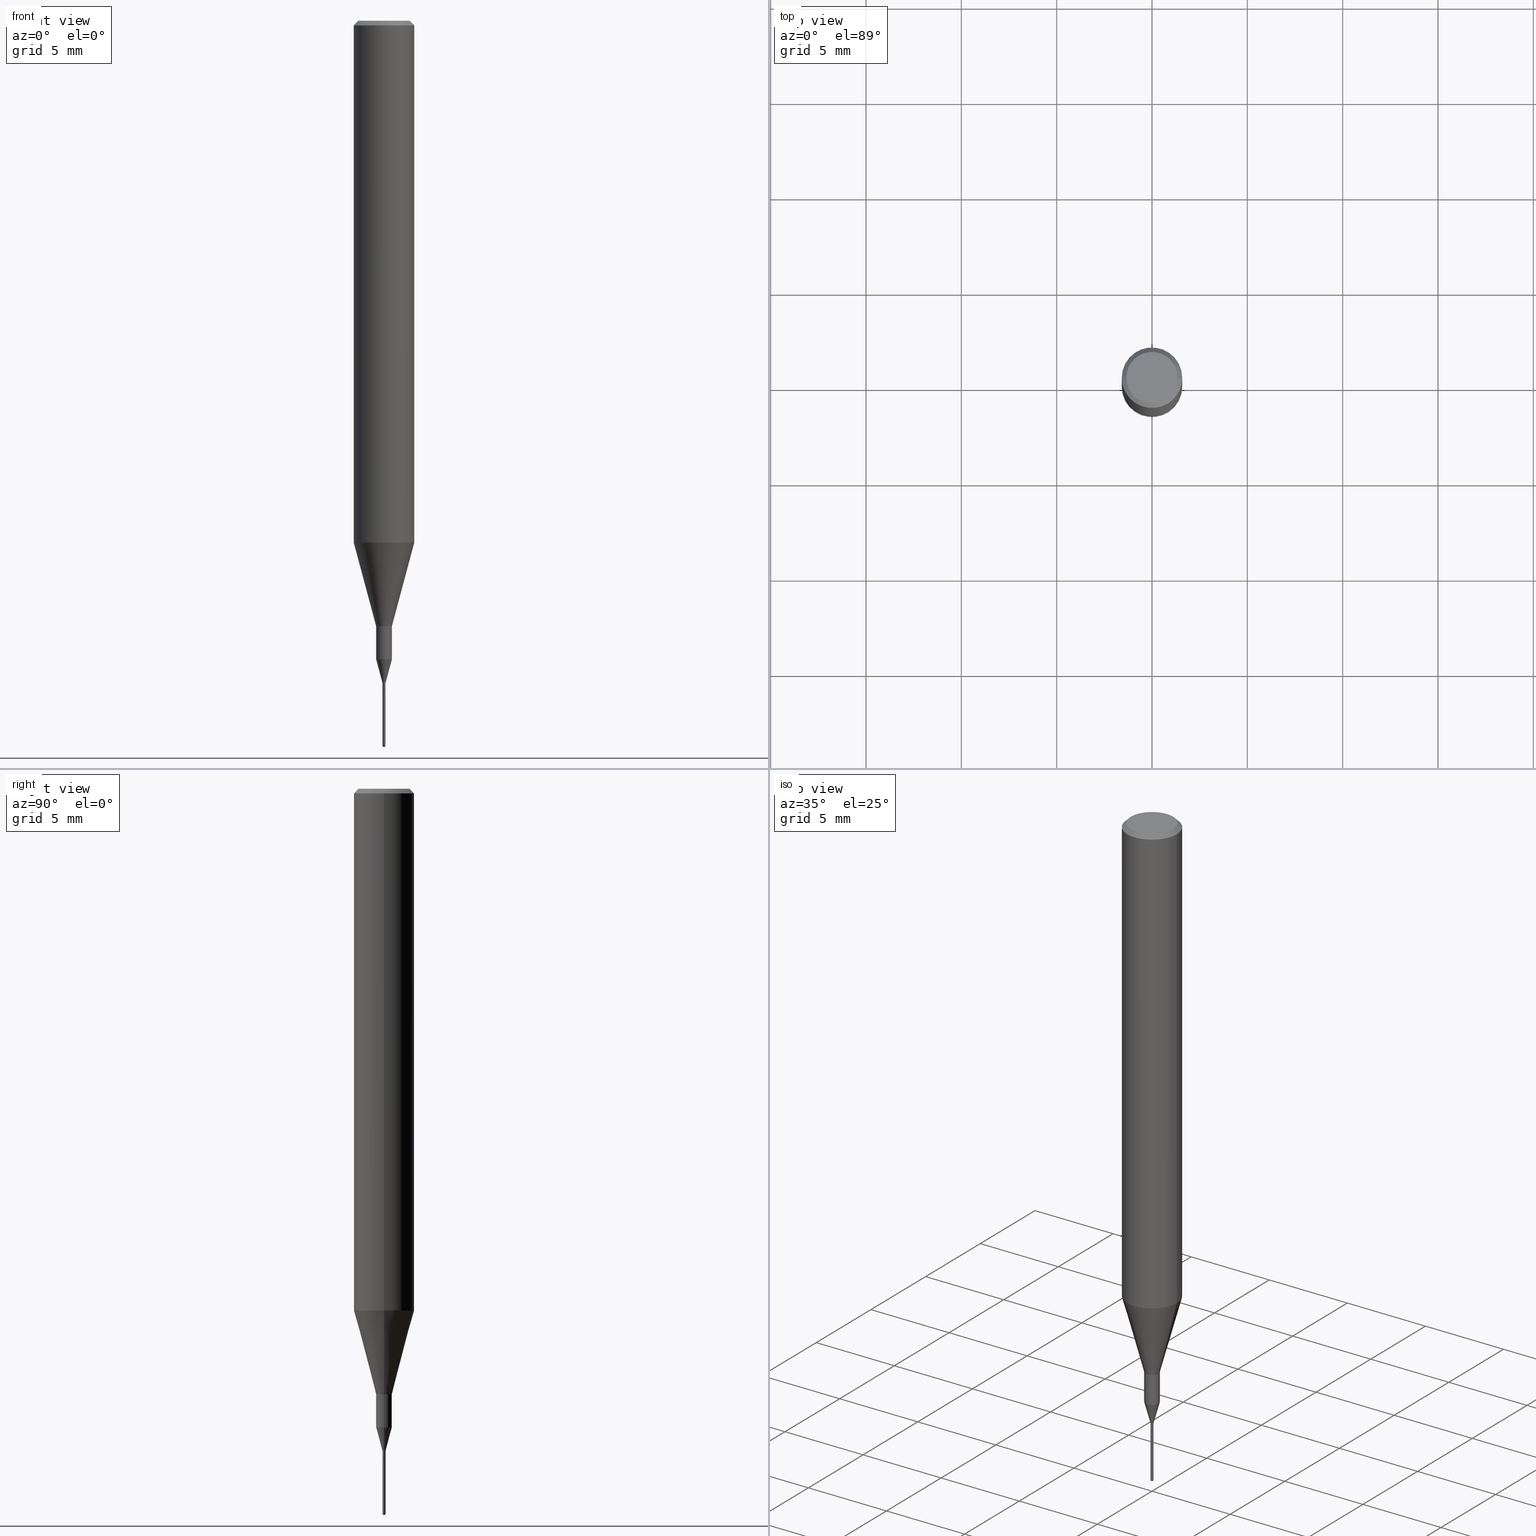
[diagram: canonical four-view strip — front | top / right | iso, engineering-drawing reading convention]
A machine part, canonical four-view strip (front | top / right | iso — engineering-drawing reading convention). The complete STEP part file that produces these views, byte-faithful:
ISO-10303-21;
HEADER;
FILE_DESCRIPTION (( 'STEP AP203' ),
    '1' );
FILE_NAME ('07071.STEP',
    '2024-04-19T13:29:31',
    ( '' ),
    ( '' ),
    'SwSTEP 2.0',
    'SolidWorks 2023',
    '' );
FILE_SCHEMA (( 'CONFIG_CONTROL_DESIGN' ));
ENDSEC;

DATA;
#1 = AXIS2_PLACEMENT_3D ( 'NONE', #4, #10, #272 ) ;
#2 = AXIS2_PLACEMENT_3D ( 'NONE', #416, #489, #253 ) ;
#3 = LINE ( 'NONE', #316, #583 ) ;
#4 = CARTESIAN_POINT ( 'NONE',  ( 3.374746952535488593E-29, -4.818244247603541543E-15, -1.380000000000000115 ) ) ;
#5 = DIRECTION ( 'NONE',  ( -2.445468806185136597E-29, 3.491481338843145583E-15, 1.000000000000000000 ) ) ;
#6 = CARTESIAN_POINT ( 'NONE',  ( 2.238209617647981031E-17, 0.003149999999995182261, -1.380000000000000115 ) ) ;
#7 = ADVANCED_FACE ( 'NONE', ( #529 ), #318, .T. ) ;
#8 = DIRECTION ( 'NONE',  ( -6.982962677686265922E-15, -1.000000000000000000, 0.000000000000000000 ) ) ;
#9 = DATE_AND_TIME ( #225, #59 ) ;
#10 = DIRECTION ( 'NONE',  ( -2.450918602701148663E-29, 3.483676920049061627E-15, 1.000000000000000000 ) ) ;
#11 = CARTESIAN_POINT ( 'NONE',  ( 2.292627005798580623E-31, -3.273263755165470184E-17, -0.009375000000000060368 ) ) ;
#12 = VECTOR ( 'NONE', #353, 39.37007874015748143 ) ;
#13 = CARTESIAN_POINT ( 'NONE',  ( 3.374746952535488593E-29, -4.818244247603541543E-15, -1.380000000000000115 ) ) ;
#14 = DIRECTION ( 'NONE',  ( 2.445468806185136597E-29, -3.491481338843145583E-15, -1.000000000000000000 ) ) ;
#15 =( GEOMETRIC_REPRESENTATION_CONTEXT ( 3 ) GLOBAL_UNCERTAINTY_ASSIGNED_CONTEXT ( ( #427 ) ) GLOBAL_UNIT_ASSIGNED_CONTEXT ( ( #339, #430, #26 ) ) REPRESENTATION_CONTEXT ( 'NONE', 'WORKASPACE' ) );
#16 = ADVANCED_FACE ( 'NONE', ( #121 ), #89, .T. ) ;
#17 = DIRECTION ( 'NONE',  ( 1.000000000000000000, -6.982962677686266711E-15, 4.875930095424100059E-29 ) ) ;
#18 = CYLINDRICAL_SURFACE ( 'NONE', #38, 0.06250000000000006939 ) ;
#19 = ORIENTED_EDGE ( 'NONE', *, *, #331, .F. ) ;
#20 = CARTESIAN_POINT ( 'NONE',  ( 3.343934045577555938E-29, -4.774251582734117286E-15, -1.367399999999999949 ) ) ;
#21 = CONICAL_SURFACE ( 'NONE', #342, 0.06250000000000012490, 0.2617993877991501295 ) ;
#22 = AXIS2_PLACEMENT_3D ( 'NONE', #271, #452, #275 ) ;
#23 = CARTESIAN_POINT ( 'NONE',  ( 0.01625000000000000056, -4.717026672918359227E-15, -1.318510134420847857 ) ) ;
#24 = ADVANCED_FACE ( 'NONE', ( #389 ), #128, .T. ) ;
#25 = DIRECTION ( 'NONE',  ( -2.445468806185136597E-29, 3.491481338843145583E-15, 1.000000000000000000 ) ) ;
#26 =( NAMED_UNIT ( * ) SI_UNIT ( $, .STERADIAN. ) SOLID_ANGLE_UNIT ( ) );
#27 = VERTEX_POINT ( 'NONE', #440 ) ;
#28 = DIRECTION ( 'NONE',  ( -2.450918602701148663E-29, 3.483676920049061627E-15, 1.000000000000000000 ) ) ;
#29 = CIRCLE ( 'NONE', #390, 0.002650000000000000445 ) ;
#30 = CIRCLE ( 'NONE', #264, 0.002650000000000000445 ) ;
#31 = PERSON_AND_ORGANIZATION ( #358, #409 ) ;
#32 = ORIENTED_EDGE ( 'NONE', *, *, #219, .F. ) ;
#33 = EDGE_CURVE ( 'NONE', #41, #387, #213, .T. ) ;
#34 = CARTESIAN_POINT ( 'NONE',  ( 0.003150000000000006094, -4.796247915168829809E-15, -1.367399999999999949 ) ) ;
#35 = ORIENTED_EDGE ( 'NONE', *, *, #559, .T. ) ;
#36 = SHAPE_DEFINITION_REPRESENTATION ( #243, #523 ) ;
#37 = VERTEX_POINT ( 'NONE', #175 ) ;
#38 = AXIS2_PLACEMENT_3D ( 'NONE', #109, #284, #377 ) ;
#39 = VECTOR ( 'NONE', #324, 39.37007874015748143 ) ;
#40 = DATE_TIME_ROLE ( 'classification_date' ) ;
#41 = VERTEX_POINT ( 'NONE', #537 ) ;
#42 = EDGE_CURVE ( 'NONE', #295, #378, #130, .T. ) ;
#43 = DIRECTION ( 'NONE',  ( -2.445468806185136597E-29, 3.491481338843145583E-15, 1.000000000000000000 ) ) ;
#44 = CYLINDRICAL_SURFACE ( 'NONE', #154, 0.01624999999999999709 ) ;
#45 = ORIENTED_EDGE ( 'NONE', *, *, #174, .T. ) ;
#46 = VECTOR ( 'NONE', #98, 39.37007874015748143 ) ;
#47 = EDGE_CURVE ( 'NONE', #345, #170, #143, .T. ) ;
#48 = CONICAL_SURFACE ( 'NONE', #2, 0.01625000000000000056, 0.2617993877991496854 ) ;
#49 = FACE_OUTER_BOUND ( 'NONE', #483, .T. ) ;
#50 = CARTESIAN_POINT ( 'NONE',  ( 2.634730117954813298E-29, -3.761696332605275695E-15, -1.077392650149939346 ) ) ;
#51 = CYLINDRICAL_SURFACE ( 'NONE', #187, 0.003150000000000000890 ) ;
#52 = DIRECTION ( 'NONE',  ( 1.000000000000000000, -6.982962677686166525E-15, 0.000000000000000000 ) ) ;
#53 = APPROVAL ( #539, 'UNSPECIFIED' ) ;
#54 = LINE ( 'NONE', #230, #292 ) ;
#55 = DIRECTION ( 'NONE',  ( -5.985567269336107729E-15, -0.8571673007021342050, 0.5150380749100177402 ) ) ;
#56 = EDGE_CURVE ( 'NONE', #170, #387, #492, .T. ) ;
#57 = CLOSED_SHELL ( 'NONE', ( #356, #291, #112, #118, #438, #255, #166, #158, #336, #538, #517, #431, #7, #239, #186, #530 ) ) ;
#58 = DIRECTION ( 'NONE',  ( 1.000000000000000000, -6.982962677686334553E-15, 0.000000000000000000 ) ) ;
#59 = LOCAL_TIME ( 9, 29, 31.00000000000000000, #501 ) ;
#60 = EDGE_CURVE ( 'NONE', #437, #37, #445, .T. ) ;
#61 = DIRECTION ( 'NONE',  ( -2.445468806185136597E-29, 3.491481338843145583E-15, 1.000000000000000000 ) ) ;
#62 = CARTESIAN_POINT ( 'NONE',  ( 1.415359278996747967E-46, -2.020757941330909984E-32, -5.787680772770392401E-18 ) ) ;
#63 = LINE ( 'NONE', #329, #391 ) ;
#64 = VERTEX_POINT ( 'NONE', #447 ) ;
#65 = DIRECTION ( 'NONE',  ( -2.445468806185136597E-29, 3.491481338843145583E-15, 1.000000000000000000 ) ) ;
#66 = EDGE_CURVE ( 'NONE', #337, #378, #321, .T. ) ;
#67 = CARTESIAN_POINT ( 'NONE',  ( -0.06250000000000012490, -3.317607122755211895E-15, -1.077392650149939346 ) ) ;
#68 = VECTOR ( 'NONE', #456, 39.37007874015748854 ) ;
#69 = CONICAL_SURFACE ( 'NONE', #233, 0.002650000000000000445, 0.7853981633975443133 ) ;
#70 = DIRECTION ( 'NONE',  ( 1.000000000000000000, -6.982962677686266711E-15, 4.876176775795935793E-29 ) ) ;
#71 = ORIENTED_EDGE ( 'NONE', *, *, #210, .F. ) ;
#72 = ORIENTED_EDGE ( 'NONE', *, *, #467, .T. ) ;
#73 = EDGE_CURVE ( 'NONE', #75, #384, #107, .T. ) ;
#74 = ORIENTED_EDGE ( 'NONE', *, *, #47, .F. ) ;
#75 = VERTEX_POINT ( 'NONE', #6 ) ;
#76 = AXIS2_PLACEMENT_3D ( 'NONE', #545, #43, #397 ) ;
#77 = VECTOR ( 'NONE', #396, 39.37007874015747433 ) ;
#78 = DIRECTION ( 'NONE',  ( 1.000000000000000000, 0.000000000000000000, 0.000000000000000000 ) ) ;
#79 = EDGE_CURVE ( 'NONE', #153, #527, #451, .T. ) ;
#80 = PRODUCT_RELATED_PRODUCT_CATEGORY ( 'detail', '', ( #477 ) ) ;
#81 = ORIENTED_EDGE ( 'NONE', *, *, #60, .F. ) ;
#82 = DIRECTION ( 'NONE',  ( -2.445468806185136597E-29, 3.491481338843145583E-15, 1.000000000000000000 ) ) ;
#83 = MECHANICAL_CONTEXT ( 'NONE', #448, 'mechanical' ) ;
#84 = DATE_AND_TIME ( #268, #136 ) ;
#85 = DIRECTION ( 'NONE',  ( 1.000000000000000000, -6.982962677686258033E-15, 0.000000000000000000 ) ) ;
#86 = DIRECTION ( 'NONE',  ( -6.982962677686265922E-15, -1.000000000000000000, 0.000000000000000000 ) ) ;
#87 = EDGE_CURVE ( 'NONE', #444, #345, #101, .T. ) ;
#88 = EDGE_LOOP ( 'NONE', ( #285, #132, #395, #151 ) ) ;
#89 = CONICAL_SURFACE ( 'NONE', #134, 65.52281426577525281, 1.029744258676700497 ) ;
#90 = AXIS2_PLACEMENT_3D ( 'NONE', #168, #122, #78 ) ;
#91 = EDGE_LOOP ( 'NONE', ( #260, #242, #429, #410 ) ) ;
#92 = DIRECTION ( 'NONE',  ( 1.000000000000000000, -6.982962677686264344E-15, 0.000000000000000000 ) ) ;
#93 = COORDINATED_UNIVERSAL_TIME_OFFSET ( 5, 0, .BEHIND. ) ;
#94 = FACE_OUTER_BOUND ( 'NONE', #487, .T. ) ;
#95 = CARTESIAN_POINT ( 'NONE',  ( 3.373524218132396352E-29, -4.816498506934120039E-15, -1.379500000000000171 ) ) ;
#96 = EDGE_CURVE ( 'NONE', #27, #171, #29, .T. ) ;
#97 = PLANE ( 'NONE',  #22 ) ;
#98 = DIRECTION ( 'NONE',  ( 0.2588190451025210170, 1.565188264969624531E-15, 0.9659258262890682012 ) ) ;
#99 = AXIS2_PLACEMENT_3D ( 'NONE', #11, #188, #184 ) ;
#100 = MANIFOLD_SOLID_BREP ( 'Body-Move/Copy2[2]', #57 ) ;
#101 = LINE ( 'NONE', #308, #46 ) ;
#102 = FACE_OUTER_BOUND ( 'NONE', #524, .T. ) ;
#103 = CARTESIAN_POINT ( 'NONE',  ( 2.238209617647689831E-17, 0.003149999999995181394, -1.380000000000000115 ) ) ;
#104 = CARTESIAN_POINT ( 'NONE',  ( 2.238209617647978258E-17, 0.003149999999994768964, -1.498107289050063518 ) ) ;
#105 = DIRECTION ( 'NONE',  ( 2.450918602701148383E-29, -3.483676920049061627E-15, -1.000000000000000000 ) ) ;
#106 = DIRECTION ( 'NONE',  ( 1.000000000000000000, -6.982962677686266711E-15, 4.875930095424100059E-29 ) ) ;
#107 = CIRCLE ( 'NONE', #273, 0.003150000000000000022 ) ;
#108 = AXIS2_PLACEMENT_3D ( 'NONE', #160, #111, #17 ) ;
#109 = CARTESIAN_POINT ( 'NONE',  ( 0.000000000000000000, 0.000000000000000000, 0.000000000000000000 ) ) ;
#110 = FACE_OUTER_BOUND ( 'NONE', #88, .T. ) ;
#111 = DIRECTION ( 'NONE',  ( -2.445468806185136597E-29, 3.491481338843145583E-15, 1.000000000000000000 ) ) ;
#112 = ADVANCED_FACE ( 'NONE', ( #497 ), #21, .T. ) ;
#113 = DIRECTION ( 'NONE',  ( 1.000000000000000000, -6.982962677686166525E-15, 0.000000000000000000 ) ) ;
#114 = CARTESIAN_POINT ( 'NONE',  ( 3.373524218132396352E-29, -4.816498506934120039E-15, -1.379500000000000171 ) ) ;
#115 = AXIS2_PLACEMENT_3D ( 'NONE', #95, #493, #182 ) ;
#116 = VECTOR ( 'NONE', #481, 39.37007874015747433 ) ;
#117 = EDGE_LOOP ( 'NONE', ( #119, #579 ) ) ;
#118 = ADVANCED_FACE ( 'NONE', ( #220 ), #44, .T. ) ;
#119 = ORIENTED_EDGE ( 'NONE', *, *, #323, .T. ) ;
#120 = ORIENTED_EDGE ( 'NONE', *, *, #96, .T. ) ;
#121 = FACE_OUTER_BOUND ( 'NONE', #428, .T. ) ;
#122 = DIRECTION ( 'NONE',  ( 0.000000000000000000, 0.000000000000000000, 1.000000000000000000 ) ) ;
#123 = ORIENTED_EDGE ( 'NONE', *, *, #174, .F. ) ;
#124 = DIRECTION ( 'NONE',  ( 1.000000000000000000, -6.982962677686264344E-15, 0.000000000000000000 ) ) ;
#125 = AXIS2_PLACEMENT_3D ( 'NONE', #460, #247, #376 ) ;
#126 = CONICAL_SURFACE ( 'NONE', #99, 0.06250000000000000000, 0.7853981633974456145 ) ;
#127 = DATE_AND_TIME ( #441, #513 ) ;
#128 = CYLINDRICAL_SURFACE ( 'NONE', #282, 0.003149999999999999589 ) ;
#129 = EDGE_CURVE ( 'NONE', #384, #75, #565, .T. ) ;
#130 = LINE ( 'NONE', #307, #381 ) ;
#131 = CARTESIAN_POINT ( 'NONE',  ( -0.06250000000000012490, -3.317607122755211895E-15, -1.077392650149939346 ) ) ;
#132 = ORIENTED_EDGE ( 'NONE', *, *, #140, .T. ) ;
#133 = AXIS2_PLACEMENT_3D ( 'NONE', #231, #14, #280 ) ;
#134 = AXIS2_PLACEMENT_3D ( 'NONE', #257, #28, #297 ) ;
#135 = LOCAL_TIME ( 9, 29, 31.00000000000000000, #471 ) ;
#136 = LOCAL_TIME ( 9, 29, 31.00000000000000000, #93 ) ;
#137 = PERSON_AND_ORGANIZATION_ROLE ( 'design_owner' ) ;
#138 = DIRECTION ( 'NONE',  ( 1.000000000000000000, -6.982962677686288799E-15, 0.000000000000000000 ) ) ;
#139 = DIRECTION ( 'NONE',  ( -2.445468806185136597E-29, 3.491481338843145583E-15, 1.000000000000000000 ) ) ;
#140 = EDGE_CURVE ( 'NONE', #64, #41, #266, .T. ) ;
#141 = DIRECTION ( 'NONE',  ( 6.090539988449948829E-15, 0.8571673007021378687, 0.5150380749100117450 ) ) ;
#142 = DIRECTION ( 'NONE',  ( 1.000000000000000000, -6.982962677686266711E-15, 0.000000000000000000 ) ) ;
#143 = LINE ( 'NONE', #458, #12 ) ;
#144 = AXIS2_PLACEMENT_3D ( 'NONE', #453, #224, #404 ) ;
#145 = CIRCLE ( 'NONE', #433, 0.003150000000000006094 ) ;
#146 = DIRECTION ( 'NONE',  ( 1.000000000000000000, -6.982962677686166525E-15, 0.000000000000000000 ) ) ;
#147 = DIRECTION ( 'NONE',  ( 1.000000000000000000, -6.982962677686258033E-15, 0.000000000000000000 ) ) ;
#148 = EDGE_CURVE ( 'NONE', #254, #378, #484, .T. ) ;
#149 = CARTESIAN_POINT ( 'NONE',  ( -0.06250000000000006939, 4.440892098500631092E-16, -3.074334431409319267E-30 ) ) ;
#150 = DIRECTION ( 'NONE',  ( -2.445468806185136597E-29, 3.491481338843145583E-15, 1.000000000000000000 ) ) ;
#151 = ORIENTED_EDGE ( 'NONE', *, *, #87, .F. ) ;
#152 = DIRECTION ( 'NONE',  ( 1.000000000000000000, -6.982962677686334553E-15, 0.000000000000000000 ) ) ;
#153 = VERTEX_POINT ( 'NONE', #312 ) ;
#154 = AXIS2_PLACEMENT_3D ( 'NONE', #221, #589, #399 ) ;
#155 = AXIS2_PLACEMENT_3D ( 'NONE', #114, #150, #289 ) ;
#156 = COORDINATED_UNIVERSAL_TIME_OFFSET ( 5, 0, .BEHIND. ) ;
#157 = CARTESIAN_POINT ( 'NONE',  ( 0.000000000000000000, 0.000000000000000000, 0.000000000000000000 ) ) ;
#158 = ADVANCED_FACE ( 'NONE', ( #314 ), #500, .F. ) ;
#159 = APPROVAL_DATE_TIME ( #568, #587 ) ;
#160 = CARTESIAN_POINT ( 'NONE',  ( 1.415359278996747967E-46, -2.020757941330909984E-32, -5.787680772770392401E-18 ) ) ;
#161 = CARTESIAN_POINT ( 'NONE',  ( 3.374746952535488593E-29, -4.818244247603541543E-15, -1.380000000000000115 ) ) ;
#162 = CLOSED_SHELL ( 'NONE', ( #248, #393, #16, #24, #549 ) ) ;
#163 = ORIENTED_EDGE ( 'NONE', *, *, #56, .F. ) ;
#164 = APPROVAL_PERSON_ORGANIZATION ( #496, #401, #262 ) ;
#165 = ORIENTED_EDGE ( 'NONE', *, *, #60, .T. ) ;
#166 = ADVANCED_FACE ( 'NONE', ( #276 ), #197, .T. ) ;
#167 = ORIENTED_EDGE ( 'NONE', *, *, #577, .T. ) ;
#168 = CARTESIAN_POINT ( 'NONE',  ( 0.000000000000000000, 0.000000000000000000, 0.000000000000000000 ) ) ;
#169 = ORIENTED_EDGE ( 'NONE', *, *, #42, .F. ) ;
#170 = VERTEX_POINT ( 'NONE', #548 ) ;
#171 = VERTEX_POINT ( 'NONE', #227 ) ;
#172 = ORIENTED_EDGE ( 'NONE', *, *, #267, .F. ) ;
#173 = VECTOR ( 'NONE', #502, 39.37007874015748143 ) ;
#174 = EDGE_CURVE ( 'NONE', #41, #345, #290, .T. ) ;
#175 = CARTESIAN_POINT ( 'NONE',  ( -2.199633243467508569E-17, -0.003150000000005228045, -1.498107289050063518 ) ) ;
#176 = LINE ( 'NONE', #103, #300 ) ;
#177 = VERTEX_POINT ( 'NONE', #104 ) ;
#178 = DIRECTION ( 'NONE',  ( 0.7071067811866154074, -2.468850131082967824E-15, 0.7071067811864796271 ) ) ;
#179 = DIRECTION ( 'NONE',  ( -2.445468806185136877E-29, 3.491481338843145188E-15, 1.000000000000000000 ) ) ;
#180 = AXIS2_PLACEMENT_3D ( 'NONE', #552, #357, #52 ) ;
#181 = AXIS2_PLACEMENT_3D ( 'NONE', #277, #550, #283 ) ;
#182 = DIRECTION ( 'NONE',  ( 1.000000000000000000, -6.982962677686358218E-15, 0.000000000000000000 ) ) ;
#183 = DIRECTION ( 'NONE',  ( 1.000000000000000000, -6.982962677686166525E-15, 0.000000000000000000 ) ) ;
#184 = DIRECTION ( 'NONE',  ( -1.000000000000000000, 6.982962677686266711E-15, 0.000000000000000000 ) ) ;
#185 = DIRECTION ( 'NONE',  ( -2.445468806185136597E-29, 3.491481338843145583E-15, 1.000000000000000000 ) ) ;
#186 = ADVANCED_FACE ( 'NONE', ( #278 ), #473, .T. ) ;
#187 = AXIS2_PLACEMENT_3D ( 'NONE', #403, #5, #226 ) ;
#188 = DIRECTION ( 'NONE',  ( 2.445468806185136597E-29, -3.491481338843145583E-15, -1.000000000000000000 ) ) ;
#189 = DIRECTION ( 'NONE',  ( 6.982962677686265922E-15, 1.000000000000000000, -3.483676920049061627E-15 ) ) ;
#190 = CARTESIAN_POINT ( 'NONE',  ( 0.06250000000000000000, -4.615137624123753937E-16, -0.009375000000000060368 ) ) ;
#191 = ORIENTED_EDGE ( 'NONE', *, *, #315, .T. ) ;
#192 = CARTESIAN_POINT ( 'NONE',  ( -0.002650000000000000445, -4.799414865105898595E-15, -1.380000000000000115 ) ) ;
#193 = ORIENTED_EDGE ( 'NONE', *, *, #129, .F. ) ;
#194 = DIRECTION ( 'NONE',  ( -2.445468806185136877E-29, 3.491481338843145188E-15, 1.000000000000000000 ) ) ;
#195 = APPROVAL_STATUS ( 'not_yet_approved' ) ;
#196 = DIRECTION ( 'NONE',  ( -2.445468806185136597E-29, 3.491481338843145583E-15, 1.000000000000000000 ) ) ;
#197 = CONICAL_SURFACE ( 'NONE', #180, 0.002650000000000000445, 0.7853981633975443133 ) ;
#198 = AXIS2_PLACEMENT_3D ( 'NONE', #413, #369, #562 ) ;
#199 = DIRECTION ( 'NONE',  ( -2.445468806185136597E-29, 3.491481338843145583E-15, 1.000000000000000000 ) ) ;
#200 = CC_DESIGN_DATE_AND_TIME_ASSIGNMENT ( #287, #406, ( #327 ) ) ;
#201 = LINE ( 'NONE', #469, #510 ) ;
#202 = DIRECTION ( 'NONE',  ( 1.000000000000000000, -6.982962677686264344E-15, 0.000000000000000000 ) ) ;
#203 = EDGE_LOOP ( 'NONE', ( #480, #572, #72, #32 ) ) ;
#204 = EDGE_CURVE ( 'NONE', #527, #64, #201, .T. ) ;
#205 = LOCAL_TIME ( 9, 29, 31.00000000000000000, #156 ) ;
#206 = ORIENTED_EDGE ( 'NONE', *, *, #315, .F. ) ;
#207 = PRODUCT_DEFINITION_FORMATION_WITH_SPECIFIED_SOURCE ( 'ANY', '', #477, .NOT_KNOWN. ) ;
#208 = ORIENTED_EDGE ( 'NONE', *, *, #228, .T. ) ;
#209 = ORIENTED_EDGE ( 'NONE', *, *, #204, .T. ) ;
#210 = EDGE_CURVE ( 'NONE', #64, #444, #299, .T. ) ;
#211 = ORIENTED_EDGE ( 'NONE', *, *, #219, .T. ) ;
#212 = VERTEX_POINT ( 'NONE', #375 ) ;
#213 = LINE ( 'NONE', #392, #352 ) ;
#214 = CIRCLE ( 'NONE', #251, 0.06250000000000012490 ) ;
#215 = PERSON_AND_ORGANIZATION ( #358, #409 ) ;
#216 = APPROVAL_PERSON_ORGANIZATION ( #344, #53, #585 ) ;
#217 = APPROVAL_DATE_TIME ( #9, #401 ) ;
#218 = ORIENTED_EDGE ( 'NONE', *, *, #140, .F. ) ;
#219 = EDGE_CURVE ( 'NONE', #341, #295, #214, .T. ) ;
#220 = FACE_OUTER_BOUND ( 'NONE', #263, .T. ) ;
#221 = CARTESIAN_POINT ( 'NONE',  ( 0.000000000000000000, 0.000000000000000000, 0.000000000000000000 ) ) ;
#222 = AXIS2_PLACEMENT_3D ( 'NONE', #362, #366, #8 ) ;
#223 = CC_DESIGN_APPROVAL ( #53, ( #567 ) ) ;
#224 = DIRECTION ( 'NONE',  ( -2.438088387897960049E-29, 3.491481338843145188E-15, 1.000000000000000000 ) ) ;
#225 = CALENDAR_DATE ( 2024, 19, 4 ) ;
#226 = DIRECTION ( 'NONE',  ( 1.000000000000000000, -6.982962677686266711E-15, 4.876176775795935793E-29 ) ) ;
#227 = CARTESIAN_POINT ( 'NONE',  ( -0.002650000000000000445, -4.796765637931787394E-15, -1.380000000000000115 ) ) ;
#228 = EDGE_CURVE ( 'NONE', #37, #177, #232, .T. ) ;
#229 = PERSON_AND_ORGANIZATION_ROLE ( 'creator' ) ;
#230 = CARTESIAN_POINT ( 'NONE',  ( -0.06250000000000000000, 4.037025298037369984E-16, -0.009375000000000060368 ) ) ;
#231 = CARTESIAN_POINT ( 'NONE',  ( 2.292627005798580623E-31, -3.273263755165470184E-17, -0.009375000000000060368 ) ) ;
#232 = CIRCLE ( 'NONE', #125, 0.003149999999999999155 ) ;
#233 = AXIS2_PLACEMENT_3D ( 'NONE', #518, #560, #113 ) ;
#234 = FACE_OUTER_BOUND ( 'NONE', #519, .T. ) ;
#235 = EDGE_CURVE ( 'NONE', #337, #212, #531, .T. ) ;
#236 = FACE_OUTER_BOUND ( 'NONE', #332, .T. ) ;
#237 = DIRECTION ( 'NONE',  ( 1.000000000000000000, -6.982962677686266711E-15, 4.876176775795935793E-29 ) ) ;
#238 = ORIENTED_EDGE ( 'NONE', *, *, #323, .F. ) ;
#239 = ADVANCED_FACE ( 'NONE', ( #241 ), #18, .T. ) ;
#240 = CYLINDRICAL_SURFACE ( 'NONE', #198, 0.01624999999999999709 ) ;
#241 = FACE_OUTER_BOUND ( 'NONE', #296, .T. ) ;
#242 = ORIENTED_EDGE ( 'NONE', *, *, #348, .T. ) ;
#243 = PRODUCT_DEFINITION_SHAPE ( 'NONE', 'NONE',  #327 ) ;
#244 = AXIS2_PLACEMENT_3D ( 'NONE', #269, #446, #398 ) ;
#245 = CARTESIAN_POINT ( 'NONE',  ( 3.343934045577555938E-29, -4.774251582734117286E-15, -1.367399999999999949 ) ) ;
#246 = ORIENTED_EDGE ( 'NONE', *, *, #66, .T. ) ;
#247 = DIRECTION ( 'NONE',  ( -2.450918602701148663E-29, 3.483676920049061627E-15, 1.000000000000000000 ) ) ;
#248 = ADVANCED_FACE ( 'NONE', ( #425 ), #570, .T. ) ;
#249 = CARTESIAN_POINT ( 'NONE',  ( 2.634730117954813298E-29, -3.761696332605275695E-15, -1.077392650149939346 ) ) ;
#250 = APPLICATION_PROTOCOL_DEFINITION ( 'international standard', 'config_control_design', 1994, #448 ) ;
#251 = AXIS2_PLACEMENT_3D ( 'NONE', #509, #423, #202 ) ;
#252 = EDGE_LOOP ( 'NONE', ( #120, #191, #486, #491 ) ) ;
#253 = DIRECTION ( 'NONE',  ( 1.000000000000000000, -6.982962677686258033E-15, 0.000000000000000000 ) ) ;
#254 = VERTEX_POINT ( 'NONE', #333 ) ;
#255 = ADVANCED_FACE ( 'NONE', ( #419 ), #326, .T. ) ;
#256 = PERSON_AND_ORGANIZATION_ROLE ( 'creator' ) ;
#257 = CARTESIAN_POINT ( 'NONE',  ( -9.282400118920134737E-28, 1.319163491695914147E-13, 37.87007874015748143 ) ) ;
#258 = ORIENTED_EDGE ( 'NONE', *, *, #79, .T. ) ;
#259 = CARTESIAN_POINT ( 'NONE',  ( 0.06250000000000012490, -4.198131499960668153E-15, -1.077392650149939346 ) ) ;
#260 = ORIENTED_EDGE ( 'NONE', *, *, #494, .F. ) ;
#261 = SECURITY_CLASSIFICATION_LEVEL ( 'unclassified' ) ;
#262 = APPROVAL_ROLE ( '' ) ;
#263 = EDGE_LOOP ( 'NONE', ( #558, #581, #163, #74 ) ) ;
#264 = AXIS2_PLACEMENT_3D ( 'NONE', #462, #61, #146 ) ;
#265 = LINE ( 'NONE', #588, #400 ) ;
#266 = LINE ( 'NONE', #360, #173 ) ;
#267 = EDGE_CURVE ( 'NONE', #295, #341, #573, .T. ) ;
#268 = CALENDAR_DATE ( 2024, 19, 4 ) ;
#269 = CARTESIAN_POINT ( 'NONE',  ( 3.224375404365154246E-29, -4.603553529405957551E-15, -1.318510134420847857 ) ) ;
#270 = CARTESIAN_POINT ( 'NONE',  ( 3.661336465667529939E-29, -5.247055575945263345E-15, -1.500000000000000222 ) ) ;
#271 = CARTESIAN_POINT ( 'NONE',  ( 7.076796394983739835E-47, -1.010378970665454992E-32, -2.893840386385196200E-18 ) ) ;
#272 = DIRECTION ( 'NONE',  ( -6.982962677686266711E-15, -1.000000000000000000, 0.000000000000000000 ) ) ;
#273 = AXIS2_PLACEMENT_3D ( 'NONE', #556, #317, #408 ) ;
#274 = EDGE_CURVE ( 'NONE', #527, #153, #454, .T. ) ;
#275 = DIRECTION ( 'NONE',  ( -1.000000000000000000, 6.982962677686265922E-15, -4.876176775795935793E-29 ) ) ;
#276 = FACE_OUTER_BOUND ( 'NONE', #252, .T. ) ;
#277 = CARTESIAN_POINT ( 'NONE',  ( -9.282400118920134737E-28, 1.319163491695914147E-13, 37.87007874015748143 ) ) ;
#278 = FACE_OUTER_BOUND ( 'NONE', #586, .T. ) ;
#279 = LINE ( 'NONE', #131, #116 ) ;
#280 = DIRECTION ( 'NONE',  ( -1.000000000000000000, 6.982962677686266711E-15, 0.000000000000000000 ) ) ;
#281 = EDGE_CURVE ( 'NONE', #444, #64, #145, .T. ) ;
#282 = AXIS2_PLACEMENT_3D ( 'NONE', #534, #490, #86 ) ;
#283 = DIRECTION ( 'NONE',  ( -6.982962677686265922E-15, -1.000000000000000000, 3.468864327941232916E-15 ) ) ;
#284 = DIRECTION ( 'NONE',  ( -2.445468806185136597E-29, 3.491481338843145583E-15, 1.000000000000000000 ) ) ;
#285 = ORIENTED_EDGE ( 'NONE', *, *, #281, .T. ) ;
#286 = ORIENTED_EDGE ( 'NONE', *, *, #504, .F. ) ;
#287 = DATE_AND_TIME ( #551, #135 ) ;
#288 = DIRECTION ( 'NONE',  ( -2.445468806185136597E-29, 3.491481338843145583E-15, 1.000000000000000000 ) ) ;
#289 = DIRECTION ( 'NONE',  ( 1.000000000000000000, -6.982962677686358218E-15, 0.000000000000000000 ) ) ;
#290 = CIRCLE ( 'NONE', #379, 0.01625000000000000056 ) ;
#291 = ADVANCED_FACE ( 'NONE', ( #234 ), #569, .T. ) ;
#292 = VECTOR ( 'NONE', #555, 39.37007874015748854 ) ;
#293 = CARTESIAN_POINT ( 'NONE',  ( 0.06250000000000012490, -4.198131499960668153E-15, -1.077392650149939346 ) ) ;
#294 = MANIFOLD_SOLID_BREP ( 'Body-Move/Copy2[1]', #162 ) ;
#295 = VERTEX_POINT ( 'NONE', #293 ) ;
#296 = EDGE_LOOP ( 'NONE', ( #540, #211, #470, #575 ) ) ;
#297 = DIRECTION ( 'NONE',  ( -6.982962677686265922E-15, -1.000000000000000000, 3.468864327941232916E-15 ) ) ;
#298 = ORIENTED_EDGE ( 'NONE', *, *, #87, .T. ) ;
#299 = CIRCLE ( 'NONE', #372, 0.003150000000000006094 ) ;
#300 = VECTOR ( 'NONE', #311, 39.37007874015748143 ) ;
#301 = EDGE_LOOP ( 'NONE', ( #206, #386, #338, #450 ) ) ;
#302 = CC_DESIGN_SECURITY_CLASSIFICATION ( #567, ( #207 ) ) ;
#303 = ORIENTED_EDGE ( 'NONE', *, *, #33, .F. ) ;
#304 = PERSON_AND_ORGANIZATION ( #358, #409 ) ;
#305 = ORIENTED_EDGE ( 'NONE', *, *, #426, .F. ) ;
#306 = ORIENTED_EDGE ( 'NONE', *, *, #380, .T. ) ;
#307 = CARTESIAN_POINT ( 'NONE',  ( 0.06250000000000006939, -4.364351673553921624E-16, 3.047610484872463374E-30 ) ) ;
#308 = CARTESIAN_POINT ( 'NONE',  ( 0.01625000000000000056, -4.717026672918359227E-15, -1.318510134420847857 ) ) ;
#309 = AXIS2_PLACEMENT_3D ( 'NONE', #411, #25, #325 ) ;
#310 = APPLICATION_PROTOCOL_DEFINITION ( 'international standard', 'config_control_design', 1994, #590 ) ;
#311 = DIRECTION ( 'NONE',  ( -2.450918602701148663E-29, 3.483676920049061627E-15, 1.000000000000000000 ) ) ;
#312 = CARTESIAN_POINT ( 'NONE',  ( 0.003149999999999995252, -4.838494839368831773E-15, -1.379500000000000171 ) ) ;
#313 = CARTESIAN_POINT ( 'NONE',  ( -0.003149999999999995252, -4.794116410757676193E-15, -1.379500000000000171 ) ) ;
#314 = FACE_OUTER_BOUND ( 'NONE', #368, .T. ) ;
#315 = EDGE_CURVE ( 'NONE', #171, #527, #516, .T. ) ;
#316 = CARTESIAN_POINT ( 'NONE',  ( 3.676509799711359687E-29, -5.225515380073592638E-15, -1.500000000000000222 ) ) ;
#317 = DIRECTION ( 'NONE',  ( -2.450918602701148663E-29, 3.483676920049061627E-15, 1.000000000000000000 ) ) ;
#318 = CONICAL_SURFACE ( 'NONE', #542, 0.06250000000000012490, 0.2617993877991501295 ) ;
#319 = VECTOR ( 'NONE', #475, 39.37007874015748143 ) ;
#320 = CARTESIAN_POINT ( 'NONE',  ( -2.199633243467798537E-17, -0.003150000000004817783, -1.380000000000000115 ) ) ;
#321 = LINE ( 'NONE', #190, #68 ) ;
#322 = CARTESIAN_POINT ( 'NONE',  ( -0.01624999999999999709, -4.368489406918928826E-15, -1.250000000000000000 ) ) ;
#323 = EDGE_CURVE ( 'NONE', #212, #337, #543, .T. ) ;
#324 = DIRECTION ( 'NONE',  ( -2.445468806185136877E-29, 3.491481338843145188E-15, 1.000000000000000000 ) ) ;
#325 = DIRECTION ( 'NONE',  ( 1.000000000000000000, -6.982962677686264344E-15, 0.000000000000000000 ) ) ;
#326 = CYLINDRICAL_SURFACE ( 'NONE', #334, 0.003150000000000000890 ) ;
#327 = PRODUCT_DEFINITION ( 'UNKNOWN', '', #207, #574 ) ;
#328 = DIRECTION ( 'NONE',  ( -2.450918602701148663E-29, 3.483676920049061627E-15, 1.000000000000000000 ) ) ;
#329 = CARTESIAN_POINT ( 'NONE',  ( 0.003150000000000000890, -2.199633243471174615E-17, 1.535995684375720193E-31 ) ) ;
#330 = CARTESIAN_POINT ( 'NONE',  ( 2.292627005798580623E-31, -3.273263755165470184E-17, -0.009375000000000060368 ) ) ;
#331 = EDGE_CURVE ( 'NONE', #378, #254, #343, .T. ) ;
#332 = EDGE_LOOP ( 'NONE', ( #303, #45, #383, #286 ) ) ;
#333 = CARTESIAN_POINT ( 'NONE',  ( -0.06250000000000000000, -1.453125275228401137E-15, -0.009375000000000060368 ) ) ;
#334 = AXIS2_PLACEMENT_3D ( 'NONE', #520, #465, #237 ) ;
#335 = ORIENTED_EDGE ( 'NONE', *, *, #73, .T. ) ;
#336 = ADVANCED_FACE ( 'NONE', ( #414 ), #69, .T. ) ;
#337 = VERTEX_POINT ( 'NONE', #472 ) ;
#338 = ORIENTED_EDGE ( 'NONE', *, *, #488, .T. ) ;
#339 =( CONVERSION_BASED_UNIT ( 'INCH', #525 ) LENGTH_UNIT ( ) NAMED_UNIT ( #402 ) );
#340 = ORIENTED_EDGE ( 'NONE', *, *, #235, .F. ) ;
#341 = VERTEX_POINT ( 'NONE', #67 ) ;
#342 = AXIS2_PLACEMENT_3D ( 'NONE', #50, #355, #92 ) ;
#343 = CIRCLE ( 'NONE', #421, 0.06250000000000000000 ) ;
#344 = PERSON_AND_ORGANIZATION ( #358, #409 ) ;
#345 = VERTEX_POINT ( 'NONE', #23 ) ;
#346 = ORIENTED_EDGE ( 'NONE', *, *, #66, .F. ) ;
#347 = EDGE_LOOP ( 'NONE', ( #580, #167, #172, #417 ) ) ;
#348 = EDGE_CURVE ( 'NONE', #177, #37, #354, .T. ) ;
#349 = COORDINATED_UNIVERSAL_TIME_OFFSET ( 5, 0, .BEHIND. ) ;
#350 = CARTESIAN_POINT ( 'NONE',  ( 3.056836007731421306E-29, -4.364351673553932471E-15, -1.250000000000000000 ) ) ;
#351 = ORIENTED_EDGE ( 'NONE', *, *, #210, .T. ) ;
#352 = VECTOR ( 'NONE', #584, 39.37007874015748143 ) ;
#353 = DIRECTION ( 'NONE',  ( -2.445468806185136877E-29, 3.491481338843145188E-15, 1.000000000000000000 ) ) ;
#354 = CIRCLE ( 'NONE', #222, 0.003149999999999999155 ) ;
#355 = DIRECTION ( 'NONE',  ( -2.445468806185136597E-29, 3.491481338843145583E-15, 1.000000000000000000 ) ) ;
#356 = ADVANCED_FACE ( 'NONE', ( #557 ), #126, .T. ) ;
#357 = DIRECTION ( 'NONE',  ( -2.445468806185136597E-29, 3.491481338843145583E-15, 1.000000000000000000 ) ) ;
#358 = PERSON ( 'UNSPECIFIED', 'UNSPECIFIED', 'UNSPECIFIED', ('UNSPECIFIED'), ('UNSPECIFIED'), ('UNSPECIFIED') ) ;
#359 = PERSON_AND_ORGANIZATION ( #358, #409 ) ;
#360 = CARTESIAN_POINT ( 'NONE',  ( -0.01625000000000000056, -4.488090334844941366E-15, -1.318510134420847857 ) ) ;
#361 = AXIS2_PLACEMENT_3D ( 'NONE', #388, #435, #85 ) ;
#362 = CARTESIAN_POINT ( 'NONE',  ( 3.664218304382890872E-29, -5.229691884556810490E-15, -1.498107289050063518 ) ) ;
#363 = PLANE ( 'NONE',  #553 ) ;
#364 = DIRECTION ( 'NONE',  ( -2.445468806185136597E-29, 3.491481338843145583E-15, 1.000000000000000000 ) ) ;
#365 = CC_DESIGN_PERSON_AND_ORGANIZATION_ASSIGNMENT ( #304, #394, ( #207 ) ) ;
#366 = DIRECTION ( 'NONE',  ( -2.450918602701148663E-29, 3.483676920049061627E-15, 1.000000000000000000 ) ) ;
#367 = DIRECTION ( 'NONE',  ( 1.000000000000000000, -6.982962677686266711E-15, 0.000000000000000000 ) ) ;
#368 = EDGE_LOOP ( 'NONE', ( #476, #479 ) ) ;
#369 = DIRECTION ( 'NONE',  ( -2.445468806185136597E-29, 3.491481338843145583E-15, 1.000000000000000000 ) ) ;
#370 = APPROVAL_ROLE ( '' ) ;
#371 = DIRECTION ( 'NONE',  ( -2.445468806185136877E-29, 3.491481338843145188E-15, 1.000000000000000000 ) ) ;
#372 = AXIS2_PLACEMENT_3D ( 'NONE', #245, #288, #58 ) ;
#373 = CIRCLE ( 'NONE', #532, 0.01624999999999999709 ) ;
#374 = LINE ( 'NONE', #320, #511 ) ;
#375 = CARTESIAN_POINT ( 'NONE',  ( -0.05312499999999999861, 3.873362110279099094E-16, -5.787680772773044021E-18 ) ) ;
#376 = DIRECTION ( 'NONE',  ( -6.982962677686265922E-15, -1.000000000000000000, 0.000000000000000000 ) ) ;
#377 = DIRECTION ( 'NONE',  ( 1.000000000000000000, -6.982962677686266711E-15, 4.876176775795935793E-29 ) ) ;
#378 = VERTEX_POINT ( 'NONE', #554 ) ;
#379 = AXIS2_PLACEMENT_3D ( 'NONE', #405, #185, #147 ) ;
#380 = EDGE_CURVE ( 'NONE', #153, #444, #63, .T. ) ;
#381 = VECTOR ( 'NONE', #179, 39.37007874015748143 ) ;
#382 = CC_DESIGN_APPROVAL ( #401, ( #327 ) ) ;
#383 = ORIENTED_EDGE ( 'NONE', *, *, #47, .T. ) ;
#384 = VERTEX_POINT ( 'NONE', #508 ) ;
#385 = LINE ( 'NONE', #259, #77 ) ;
#386 = ORIENTED_EDGE ( 'NONE', *, *, #418, .T. ) ;
#387 = VERTEX_POINT ( 'NONE', #322 ) ;
#388 = CARTESIAN_POINT ( 'NONE',  ( 3.224375404365154246E-29, -4.603553529405957551E-15, -1.318510134420847857 ) ) ;
#389 = FACE_OUTER_BOUND ( 'NONE', #91, .T. ) ;
#390 = AXIS2_PLACEMENT_3D ( 'NONE', #505, #364, #183 ) ;
#391 = VECTOR ( 'NONE', #194, 39.37007874015748143 ) ;
#392 = CARTESIAN_POINT ( 'NONE',  ( -0.01624999999999999709, 1.154631945610162595E-16, -7.993269521664220284E-31 ) ) ;
#393 = ADVANCED_FACE ( 'NONE', ( #102 ), #474, .T. ) ;
#394 = PERSON_AND_ORGANIZATION_ROLE ( 'design_supplier' ) ;
#395 = ORIENTED_EDGE ( 'NONE', *, *, #459, .F. ) ;
#396 = DIRECTION ( 'NONE',  ( 0.2588190451025214611, 1.565188264969621573E-15, 0.9659258262890682012 ) ) ;
#397 = DIRECTION ( 'NONE',  ( 1.000000000000000000, -6.982962677686288799E-15, 0.000000000000000000 ) ) ;
#398 = DIRECTION ( 'NONE',  ( 1.000000000000000000, -6.982962677686258033E-15, 0.000000000000000000 ) ) ;
#399 = DIRECTION ( 'NONE',  ( 1.000000000000000000, -6.982962677686267499E-15, 4.876176775795936353E-29 ) ) ;
#400 = VECTOR ( 'NONE', #178, 39.37007874015748143 ) ;
#401 = APPROVAL ( #547, 'UNSPECIFIED' ) ;
#402 = DIMENSIONAL_EXPONENTS ( 1.000000000000000000, 0.000000000000000000, 0.000000000000000000, 0.000000000000000000, 0.000000000000000000, 0.000000000000000000, 0.000000000000000000 ) ;
#403 = CARTESIAN_POINT ( 'NONE',  ( 0.000000000000000000, 0.000000000000000000, 0.000000000000000000 ) ) ;
#404 = DIRECTION ( 'NONE',  ( 1.000000000000000000, -6.982962677686265922E-15, 4.876176775795935793E-29 ) ) ;
#405 = CARTESIAN_POINT ( 'NONE',  ( 3.224375404365154246E-29, -4.603553529405957551E-15, -1.318510134420847857 ) ) ;
#406 = DATE_TIME_ROLE ( 'creation_date' ) ;
#407 = FACE_OUTER_BOUND ( 'NONE', #512, .T. ) ;
#408 = DIRECTION ( 'NONE',  ( -6.982962677686266711E-15, -1.000000000000000000, 0.000000000000000000 ) ) ;
#409 = ORGANIZATION ( 'UNSPECIFIED', 'UNSPECIFIED', '' ) ;
#410 = ORIENTED_EDGE ( 'NONE', *, *, #73, .F. ) ;
#411 = CARTESIAN_POINT ( 'NONE',  ( 2.634730117954813298E-29, -3.761696332605275695E-15, -1.077392650149939346 ) ) ;
#412 = ORIENTED_EDGE ( 'NONE', *, *, #281, .F. ) ;
#413 = CARTESIAN_POINT ( 'NONE',  ( 0.000000000000000000, 0.000000000000000000, 0.000000000000000000 ) ) ;
#414 = FACE_OUTER_BOUND ( 'NONE', #301, .T. ) ;
#415 = ORIENTED_EDGE ( 'NONE', *, *, #380, .F. ) ;
#416 = CARTESIAN_POINT ( 'NONE',  ( 3.224375404365154246E-29, -4.603553529405957551E-15, -1.318510134420847857 ) ) ;
#417 = ORIENTED_EDGE ( 'NONE', *, *, #467, .F. ) ;
#418 = EDGE_CURVE ( 'NONE', #171, #27, #30, .T. ) ;
#419 = FACE_OUTER_BOUND ( 'NONE', #498, .T. ) ;
#420 = AXIS2_PLACEMENT_3D ( 'NONE', #62, #65, #106 ) ;
#421 = AXIS2_PLACEMENT_3D ( 'NONE', #330, #196, #367 ) ;
#422 = ORIENTED_EDGE ( 'NONE', *, *, #522, .T. ) ;
#423 = DIRECTION ( 'NONE',  ( -2.445468806185136597E-29, 3.491481338843145583E-15, 1.000000000000000000 ) ) ;
#424 = ORIENTED_EDGE ( 'NONE', *, *, #129, .T. ) ;
#425 = FACE_OUTER_BOUND ( 'NONE', #576, .T. ) ;
#426 = EDGE_CURVE ( 'NONE', #37, #384, #374, .T. ) ;
#427 = UNCERTAINTY_MEASURE_WITH_UNIT (LENGTH_MEASURE( 1.000000000000000082E-05 ), #339, 'distance_accuracy_value', 'NONE');
#428 = EDGE_LOOP ( 'NONE', ( #561, #165, #533 ) ) ;
#429 = ORIENTED_EDGE ( 'NONE', *, *, #426, .T. ) ;
#430 =( NAMED_UNIT ( * ) PLANE_ANGLE_UNIT ( ) SI_UNIT ( $, .RADIAN. ) );
#431 = ADVANCED_FACE ( 'NONE', ( #236 ), #240, .T. ) ;
#432 = AXIS2_PLACEMENT_3D ( 'NONE', #546, #139, #142 ) ;
#433 = AXIS2_PLACEMENT_3D ( 'NONE', #20, #199, #152 ) ;
#434 = ORIENTED_EDGE ( 'NONE', *, *, #267, .T. ) ;
#435 = DIRECTION ( 'NONE',  ( -2.445468806185136597E-29, 3.491481338843145583E-15, 1.000000000000000000 ) ) ;
#436 = ORIENTED_EDGE ( 'NONE', *, *, #571, .T. ) ;
#437 = VERTEX_POINT ( 'NONE', #514 ) ;
#438 = ADVANCED_FACE ( 'NONE', ( #110 ), #48, .T. ) ;
#439 = APPROVAL_DATE_TIME ( #84, #53 ) ;
#440 = CARTESIAN_POINT ( 'NONE',  ( 0.002650000000000000445, -4.836749098699409481E-15, -1.380000000000000115 ) ) ;
#441 = CALENDAR_DATE ( 2024, 19, 4 ) ;
#442 = EDGE_LOOP ( 'NONE', ( #340, #246, #463, #578 ) ) ;
#443 = CC_DESIGN_DATE_AND_TIME_ASSIGNMENT ( #127, #40, ( #567 ) ) ;
#444 = VERTEX_POINT ( 'NONE', #34 ) ;
#445 = LINE ( 'NONE', #270, #582 ) ;
#446 = DIRECTION ( 'NONE',  ( -2.445468806185136597E-29, 3.491481338843145583E-15, 1.000000000000000000 ) ) ;
#447 = CARTESIAN_POINT ( 'NONE',  ( -0.003150000000000006094, -4.772992948657675606E-15, -1.367399999999999949 ) ) ;
#448 = APPLICATION_CONTEXT ( 'configuration controlled 3d designs of mechanical parts and assemblies' ) ;
#449 = CC_DESIGN_PERSON_AND_ORGANIZATION_ASSIGNMENT ( #359, #229, ( #327 ) ) ;
#450 = ORIENTED_EDGE ( 'NONE', *, *, #274, .F. ) ;
#451 = CIRCLE ( 'NONE', #115, 0.003149999999999995252 ) ;
#452 = DIRECTION ( 'NONE',  ( 2.438088387897960049E-29, -3.491481338843145188E-15, -1.000000000000000000 ) ) ;
#453 = CARTESIAN_POINT ( 'NONE',  ( 3.374746952535488593E-29, -4.818244247603541543E-15, -1.380000000000000115 ) ) ;
#454 = CIRCLE ( 'NONE', #155, 0.003149999999999995252 ) ;
#455 = CC_DESIGN_APPROVAL ( #587, ( #207 ) ) ;
#456 = DIRECTION ( 'NONE',  ( 0.7071067811865454633, -7.319954787623246579E-15, -0.7071067811865493491 ) ) ;
#457 = DIRECTION ( 'NONE',  ( -2.450918602701148663E-29, 3.483676920049061627E-15, 1.000000000000000000 ) ) ;
#458 = CARTESIAN_POINT ( 'NONE',  ( 0.01624999999999999709, -1.134731435124018242E-16, 7.923787260668394963E-31 ) ) ;
#459 = EDGE_CURVE ( 'NONE', #345, #41, #566, .T. ) ;
#460 = CARTESIAN_POINT ( 'NONE',  ( 3.664218304382890872E-29, -5.229691884556810490E-15, -1.498107289050063518 ) ) ;
#461 = APPROVAL_PERSON_ORGANIZATION ( #464, #587, #370 ) ;
#462 = CARTESIAN_POINT ( 'NONE',  ( 3.374746952535488593E-29, -4.818244247603541543E-15, -1.380000000000000115 ) ) ;
#463 = ORIENTED_EDGE ( 'NONE', *, *, #331, .T. ) ;
#464 = PERSON_AND_ORGANIZATION ( #358, #409 ) ;
#465 = DIRECTION ( 'NONE',  ( -2.445468806185136597E-29, 3.491481338843145583E-15, 1.000000000000000000 ) ) ;
#466 = ORIENTED_EDGE ( 'NONE', *, *, #274, .T. ) ;
#467 = EDGE_CURVE ( 'NONE', #170, #295, #385, .T. ) ;
#468 = ORIENTED_EDGE ( 'NONE', *, *, #148, .T. ) ;
#469 = CARTESIAN_POINT ( 'NONE',  ( -0.003150000000000000890, 2.238209617644316218E-17, -1.549464553430295677E-31 ) ) ;
#470 = ORIENTED_EDGE ( 'NONE', *, *, #42, .T. ) ;
#471 = COORDINATED_UNIVERSAL_TIME_OFFSET ( 5, 0, .BEHIND. ) ;
#472 = CARTESIAN_POINT ( 'NONE',  ( 0.05312499999999999861, -4.129888592719939842E-16, -5.787680772767651417E-18 ) ) ;
#473 = CONICAL_SURFACE ( 'NONE', #133, 0.06250000000000000000, 0.7853981633974456145 ) ;
#474 = CONICAL_SURFACE ( 'NONE', #181, 65.52281426577525281, 1.029744258676700497 ) ;
#475 = DIRECTION ( 'NONE',  ( -0.7071067811866154074, 7.493145998870600285E-15, 0.7071067811864796271 ) ) ;
#476 = ORIENTED_EDGE ( 'NONE', *, *, #96, .F. ) ;
#477 = PRODUCT ( '07071', '07071', '', ( #83 ) ) ;
#478 = CC_DESIGN_PERSON_AND_ORGANIZATION_ASSIGNMENT ( #31, #256, ( #207 ) ) ;
#479 = ORIENTED_EDGE ( 'NONE', *, *, #418, .F. ) ;
#480 = ORIENTED_EDGE ( 'NONE', *, *, #577, .F. ) ;
#481 = DIRECTION ( 'NONE',  ( -0.2588190451025214611, 5.211531920934551042E-15, 0.9659258262890682012 ) ) ;
#482 = ORIENTED_EDGE ( 'NONE', *, *, #204, .F. ) ;
#483 = EDGE_LOOP ( 'NONE', ( #482, #466, #306, #71 ) ) ;
#484 = CIRCLE ( 'NONE', #432, 0.06250000000000000000 ) ;
#485 = AXIS2_PLACEMENT_3D ( 'NONE', #157, #507, #70 ) ;
#486 = ORIENTED_EDGE ( 'NONE', *, *, #79, .F. ) ;
#487 = EDGE_LOOP ( 'NONE', ( #218, #351, #298, #123 ) ) ;
#488 = EDGE_CURVE ( 'NONE', #27, #153, #265, .T. ) ;
#489 = DIRECTION ( 'NONE',  ( -2.445468806185136597E-29, 3.491481338843145583E-15, 1.000000000000000000 ) ) ;
#490 = DIRECTION ( 'NONE',  ( -2.450918602701148663E-29, 3.483676920049061627E-15, 1.000000000000000000 ) ) ;
#491 = ORIENTED_EDGE ( 'NONE', *, *, #488, .F. ) ;
#492 = CIRCLE ( 'NONE', #76, 0.01624999999999999709 ) ;
#493 = DIRECTION ( 'NONE',  ( -2.445468806185136597E-29, 3.491481338843145583E-15, 1.000000000000000000 ) ) ;
#494 = EDGE_CURVE ( 'NONE', #177, #75, #176, .T. ) ;
#495 = PERSON_AND_ORGANIZATION_ROLE ( 'classification_officer' ) ;
#496 = PERSON_AND_ORGANIZATION ( #358, #409 ) ;
#497 = FACE_OUTER_BOUND ( 'NONE', #347, .T. ) ;
#498 = EDGE_LOOP ( 'NONE', ( #258, #209, #412, #415 ) ) ;
#499 = FACE_OUTER_BOUND ( 'NONE', #117, .T. ) ;
#500 = PLANE ( 'NONE',  #144 ) ;
#501 = COORDINATED_UNIVERSAL_TIME_OFFSET ( 5, 0, .BEHIND. ) ;
#502 = DIRECTION ( 'NONE',  ( -0.2588190451025210170, 5.211531920934547886E-15, 0.9659258262890682012 ) ) ;
#503 = CONICAL_SURFACE ( 'NONE', #244, 0.01625000000000000056, 0.2617993877991496854 ) ;
#504 = EDGE_CURVE ( 'NONE', #387, #170, #373, .T. ) ;
#505 = CARTESIAN_POINT ( 'NONE',  ( 3.374746952535488593E-29, -4.818244247603541543E-15, -1.380000000000000115 ) ) ;
#506 = LINE ( 'NONE', #149, #39 ) ;
#507 = DIRECTION ( 'NONE',  ( -2.445468806185136597E-29, 3.491481338843145583E-15, 1.000000000000000000 ) ) ;
#508 = CARTESIAN_POINT ( 'NONE',  ( -2.199633243467798845E-17, -0.003150000000004818217, -1.380000000000000115 ) ) ;
#509 = CARTESIAN_POINT ( 'NONE',  ( 2.634730117954813298E-29, -3.761696332605275695E-15, -1.077392650149939346 ) ) ;
#510 = VECTOR ( 'NONE', #371, 39.37007874015748143 ) ;
#511 = VECTOR ( 'NONE', #457, 39.37007874015748143 ) ;
#512 = EDGE_LOOP ( 'NONE', ( #424, #335 ) ) ;
#513 = LOCAL_TIME ( 9, 29, 31.00000000000000000, #349 ) ;
#514 = CARTESIAN_POINT ( 'NONE',  ( 3.676377904051723555E-29, -5.225515380073592638E-15, -1.500000000000000222 ) ) ;
#515 = CALENDAR_DATE ( 2024, 19, 4 ) ;
#516 = LINE ( 'NONE', #192, #319 ) ;
#517 = ADVANCED_FACE ( 'NONE', ( #94 ), #503, .T. ) ;
#518 = CARTESIAN_POINT ( 'NONE',  ( 3.374746952535488593E-29, -4.818244247603541543E-15, -1.380000000000000115 ) ) ;
#519 = EDGE_LOOP ( 'NONE', ( #434, #436, #19, #169 ) ) ;
#520 = CARTESIAN_POINT ( 'NONE',  ( 0.000000000000000000, 0.000000000000000000, 0.000000000000000000 ) ) ;
#521 = AXIS2_PLACEMENT_3D ( 'NONE', #161, #328, #563 ) ;
#522 = EDGE_CURVE ( 'NONE', #437, #177, #3, .T. ) ;
#523 = ADVANCED_BREP_SHAPE_REPRESENTATION ( '07071', ( #294, #100, #90 ), #15 ) ;
#524 = EDGE_LOOP ( 'NONE', ( #81, #422, #528 ) ) ;
#525 = LENGTH_MEASURE_WITH_UNIT ( LENGTH_MEASURE( 0.02539999999999999897 ), #535 );
#526 = ORIENTED_EDGE ( 'NONE', *, *, #494, .T. ) ;
#527 = VERTEX_POINT ( 'NONE', #313 ) ;
#528 = ORIENTED_EDGE ( 'NONE', *, *, #228, .F. ) ;
#529 = FACE_OUTER_BOUND ( 'NONE', #203, .T. ) ;
#530 = ADVANCED_FACE ( 'NONE', ( #499 ), #97, .F. ) ;
#531 = CIRCLE ( 'NONE', #420, 0.05312499999999999861 ) ;
#532 = AXIS2_PLACEMENT_3D ( 'NONE', #350, #544, #138 ) ;
#533 = ORIENTED_EDGE ( 'NONE', *, *, #348, .F. ) ;
#534 = CARTESIAN_POINT ( 'NONE',  ( 3.374746952535488593E-29, -4.818244247603541543E-15, -1.380000000000000115 ) ) ;
#535 =( LENGTH_UNIT ( ) NAMED_UNIT ( * ) SI_UNIT ( $, .METRE. ) );
#536 = PERSON_AND_ORGANIZATION ( #358, #409 ) ;
#537 = CARTESIAN_POINT ( 'NONE',  ( -0.01625000000000000056, -4.488090334844941366E-15, -1.318510134420847857 ) ) ;
#538 = ADVANCED_FACE ( 'NONE', ( #49 ), #51, .T. ) ;
#539 = APPROVAL_STATUS ( 'not_yet_approved' ) ;
#540 = ORIENTED_EDGE ( 'NONE', *, *, #571, .F. ) ;
#541 = CC_DESIGN_PERSON_AND_ORGANIZATION_ASSIGNMENT ( #536, #495, ( #567 ) ) ;
#542 = AXIS2_PLACEMENT_3D ( 'NONE', #249, #82, #124 ) ;
#543 = CIRCLE ( 'NONE', #108, 0.05312499999999999861 ) ;
#544 = DIRECTION ( 'NONE',  ( -2.445468806185136597E-29, 3.491481338843145583E-15, 1.000000000000000000 ) ) ;
#545 = CARTESIAN_POINT ( 'NONE',  ( 3.056836007731421306E-29, -4.364351673553932471E-15, -1.250000000000000000 ) ) ;
#546 = CARTESIAN_POINT ( 'NONE',  ( 2.292627005798580623E-31, -3.273263755165470184E-17, -0.009375000000000060368 ) ) ;
#547 = APPROVAL_STATUS ( 'not_yet_approved' ) ;
#548 = CARTESIAN_POINT ( 'NONE',  ( 0.01624999999999999709, -4.477824817066334148E-15, -1.250000000000000000 ) ) ;
#549 = ADVANCED_FACE ( 'NONE', ( #407 ), #363, .F. ) ;
#550 = DIRECTION ( 'NONE',  ( -2.450918602701148663E-29, 3.483676920049061627E-15, 1.000000000000000000 ) ) ;
#551 = CALENDAR_DATE ( 2024, 19, 4 ) ;
#552 = CARTESIAN_POINT ( 'NONE',  ( 3.374746952535488593E-29, -4.818244247603541543E-15, -1.380000000000000115 ) ) ;
#553 = AXIS2_PLACEMENT_3D ( 'NONE', #13, #105, #189 ) ;
#554 = CARTESIAN_POINT ( 'NONE',  ( 0.06250000000000000000, -4.691678049070463404E-16, -0.009375000000000060368 ) ) ;
#555 = DIRECTION ( 'NONE',  ( -0.7071067811865454633, 2.468850131082235761E-15, -0.7071067811865493491 ) ) ;
#556 = CARTESIAN_POINT ( 'NONE',  ( 3.374746952535488593E-29, -4.818244247603541543E-15, -1.380000000000000115 ) ) ;
#557 = FACE_OUTER_BOUND ( 'NONE', #442, .T. ) ;
#558 = ORIENTED_EDGE ( 'NONE', *, *, #459, .T. ) ;
#559 = EDGE_CURVE ( 'NONE', #212, #254, #54, .T. ) ;
#560 = DIRECTION ( 'NONE',  ( -2.445468806185136597E-29, 3.491481338843145583E-15, 1.000000000000000000 ) ) ;
#561 = ORIENTED_EDGE ( 'NONE', *, *, #522, .F. ) ;
#562 = DIRECTION ( 'NONE',  ( 1.000000000000000000, -6.982962677686267499E-15, 4.876176775795936353E-29 ) ) ;
#563 = DIRECTION ( 'NONE',  ( -6.982962677686265922E-15, -1.000000000000000000, 0.000000000000000000 ) ) ;
#564 = CC_DESIGN_PERSON_AND_ORGANIZATION_ASSIGNMENT ( #215, #137, ( #477 ) ) ;
#565 = CIRCLE ( 'NONE', #1, 0.003150000000000000022 ) ;
#566 = CIRCLE ( 'NONE', #361, 0.01625000000000000056 ) ;
#567 = SECURITY_CLASSIFICATION ( '', '', #261 ) ;
#568 = DATE_AND_TIME ( #515, #205 ) ;
#569 = CYLINDRICAL_SURFACE ( 'NONE', #485, 0.06250000000000006939 ) ;
#570 = CYLINDRICAL_SURFACE ( 'NONE', #521, 0.003149999999999999589 ) ;
#571 = EDGE_CURVE ( 'NONE', #341, #254, #506, .T. ) ;
#572 = ORIENTED_EDGE ( 'NONE', *, *, #504, .T. ) ;
#573 = CIRCLE ( 'NONE', #309, 0.06250000000000012490 ) ;
#574 = DESIGN_CONTEXT ( 'detailed design', #590, 'design' ) ;
#575 = ORIENTED_EDGE ( 'NONE', *, *, #148, .F. ) ;
#576 = EDGE_LOOP ( 'NONE', ( #208, #526, #193, #305 ) ) ;
#577 = EDGE_CURVE ( 'NONE', #387, #341, #279, .T. ) ;
#578 = ORIENTED_EDGE ( 'NONE', *, *, #559, .F. ) ;
#579 = ORIENTED_EDGE ( 'NONE', *, *, #235, .T. ) ;
#580 = ORIENTED_EDGE ( 'NONE', *, *, #56, .T. ) ;
#581 = ORIENTED_EDGE ( 'NONE', *, *, #33, .T. ) ;
#582 = VECTOR ( 'NONE', #55, 39.37007874015748143 ) ;
#583 = VECTOR ( 'NONE', #141, 39.37007874015748854 ) ;
#584 = DIRECTION ( 'NONE',  ( -2.445468806185136877E-29, 3.491481338843145188E-15, 1.000000000000000000 ) ) ;
#585 = APPROVAL_ROLE ( '' ) ;
#586 = EDGE_LOOP ( 'NONE', ( #346, #238, #35, #468 ) ) ;
#587 = APPROVAL ( #195, 'UNSPECIFIED' ) ;
#588 = CARTESIAN_POINT ( 'NONE',  ( 0.002650000000000000445, -4.836749098699409481E-15, -1.380000000000000115 ) ) ;
#589 = DIRECTION ( 'NONE',  ( -2.445468806185136597E-29, 3.491481338843145583E-15, 1.000000000000000000 ) ) ;
#590 = APPLICATION_CONTEXT ( 'configuration controlled 3d designs of mechanical parts and assemblies' ) ;
ENDSEC;
END-ISO-10303-21;
